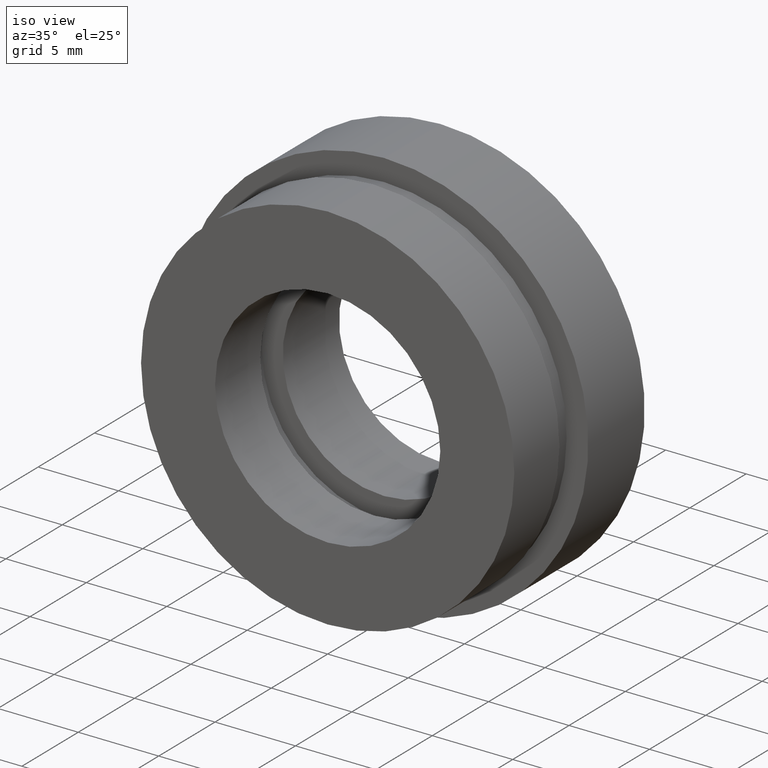
[diagram: clean part render]
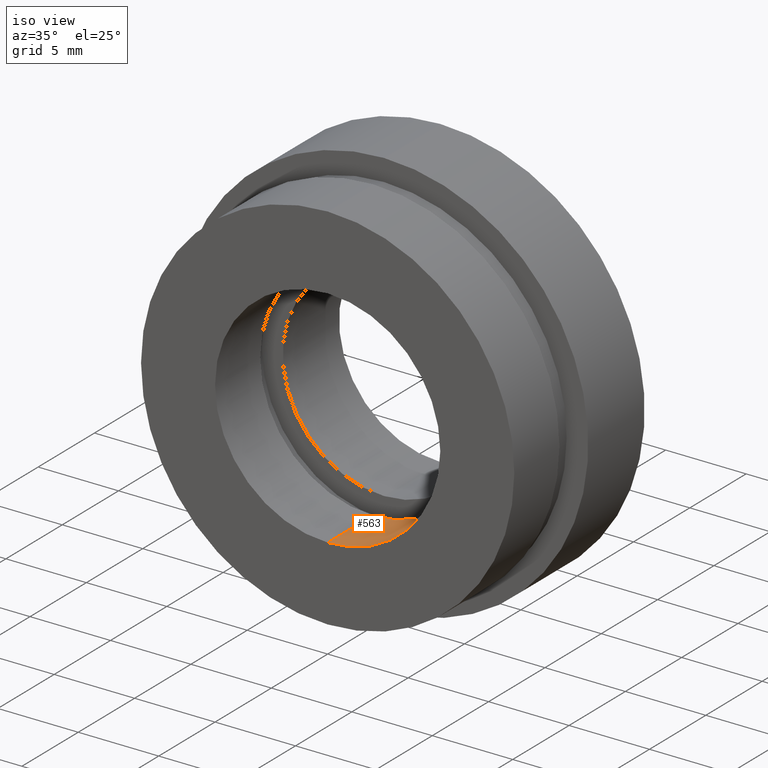
[diagram: same view with one face highlighted and labeled with its STEP entity id]
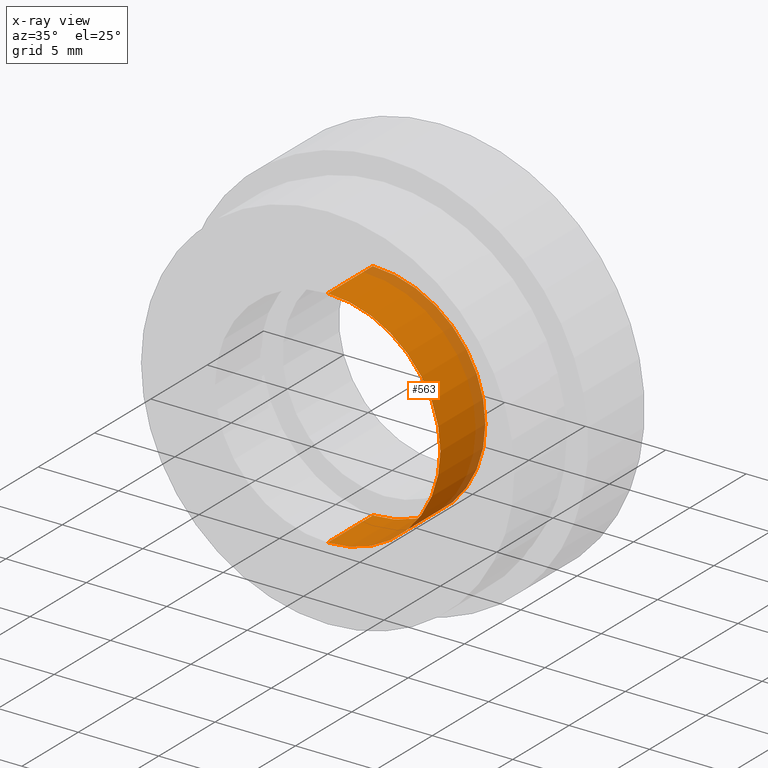
[diagram: x-ray of the same camera — body ghosted, the highlighted face saturated]
A machine part, iso view. The second image highlights one B-rep face of the part: STEP entity #563.
The next image is the same camera in x-ray: the body ghosted, the highlighted face saturated — about 19% of this face is hidden behind the body in this view.
In plain terms, the highlighted cylindrical surface (partial cylindrical patch) has radius 7 mm, axis along (-0, 1, -0).
Its self-contained STEP definition (entity closure, byte-faithful):
#5 = CARTESIAN_POINT ( 'NONE',  ( 0.0000000000000000000, 13.74468085106383300, 7.000000000000000900 ) ) ;
#45 = DIRECTION ( 'NONE',  ( 0.0000000000000000000, 0.0000000000000000000, 1.000000000000000000 ) ) ;
#60 = DIRECTION ( 'NONE',  ( -0.0000000000000000000, 1.000000000000000000, -0.0000000000000000000 ) ) ;
#87 = VERTEX_POINT ( 'NONE', #159 ) ;
#88 = VERTEX_POINT ( 'NONE', #107 ) ;
#97 = DIRECTION ( 'NONE',  ( 0.0000000000000000000, 0.0000000000000000000, 1.000000000000000000 ) ) ;
#104 = LINE ( 'NONE', #5, #602 ) ;
#107 = CARTESIAN_POINT ( 'NONE',  ( 8.572527594031474200E-016, 4.000000000000000000, -7.000000000000000900 ) ) ;
#128 = AXIS2_PLACEMENT_3D ( 'NONE', #362, #160, #45 ) ;
#159 = CARTESIAN_POINT ( 'NONE',  ( 0.0000000000000000000, 0.0000000000000000000, 7.000000000000001800 ) ) ;
#160 = DIRECTION ( 'NONE',  ( -0.0000000000000000000, 1.000000000000000000, -0.0000000000000000000 ) ) ;
#168 = CARTESIAN_POINT ( 'NONE',  ( 0.0000000000000000000, 0.0000000000000000000, 0.0000000000000000000 ) ) ;
#180 = DIRECTION ( 'NONE',  ( -0.0000000000000000000, 1.000000000000000000, -0.0000000000000000000 ) ) ;
#198 = AXIS2_PLACEMENT_3D ( 'NONE', #168, #180, #97 ) ;
#224 = EDGE_LOOP ( 'NONE', ( #550, #342, #338, #575 ) ) ;
#256 = CYLINDRICAL_SURFACE ( 'NONE', #516, 7.000000000000000900 ) ;
#287 = CARTESIAN_POINT ( 'NONE',  ( 8.572527594031475200E-016, 0.0000000000000000000, -7.000000000000002700 ) ) ;
#313 = FACE_OUTER_BOUND ( 'NONE', #224, .T. ) ;
#338 = ORIENTED_EDGE ( 'NONE', *, *, #383, .T. ) ;
#342 = ORIENTED_EDGE ( 'NONE', *, *, #371, .F. ) ;
#362 = CARTESIAN_POINT ( 'NONE',  ( 0.0000000000000000000, 4.000000000000000000, 0.0000000000000000000 ) ) ;
#371 = EDGE_CURVE ( 'NONE', #87, #471, #540, .T. ) ;
#383 = EDGE_CURVE ( 'NONE', #87, #561, #104, .T. ) ;
#431 = EDGE_CURVE ( 'NONE', #561, #88, #558, .T. ) ;
#471 = VERTEX_POINT ( 'NONE', #287 ) ;
#480 = DIRECTION ( 'NONE',  ( -0.0000000000000000000, 1.000000000000000000, -0.0000000000000000000 ) ) ;
#500 = LINE ( 'NONE', #539, #600 ) ;
#510 = EDGE_CURVE ( 'NONE', #471, #88, #500, .T. ) ;
#516 = AXIS2_PLACEMENT_3D ( 'NONE', #572, #480, #551 ) ;
#539 = CARTESIAN_POINT ( 'NONE',  ( 8.572527594031474200E-016, 13.74468085106383300, -7.000000000000000900 ) ) ;
#540 = CIRCLE ( 'NONE', #198, 7.000000000000001800 ) ;
#550 = ORIENTED_EDGE ( 'NONE', *, *, #510, .F. ) ;
#551 = DIRECTION ( 'NONE',  ( 0.0000000000000000000, 0.0000000000000000000, 1.000000000000000000 ) ) ;
#558 = CIRCLE ( 'NONE', #128, 7.000000000000000900 ) ;
#559 = CARTESIAN_POINT ( 'NONE',  ( 0.0000000000000000000, 4.000000000000000000, 7.000000000000000900 ) ) ;
#561 = VERTEX_POINT ( 'NONE', #559 ) ;
#563 = ADVANCED_FACE ( 'NONE', ( #313 ), #256, .F. ) ;
#572 = CARTESIAN_POINT ( 'NONE',  ( 0.0000000000000000000, 13.74468085106383300, 0.0000000000000000000 ) ) ;
#575 = ORIENTED_EDGE ( 'NONE', *, *, #431, .T. ) ;
#592 = DIRECTION ( 'NONE',  ( -0.0000000000000000000, 1.000000000000000000, -0.0000000000000000000 ) ) ;
#600 = VECTOR ( 'NONE', #60, 1000.000000000000000 ) ;
#602 = VECTOR ( 'NONE', #592, 1000.000000000000000 ) ;